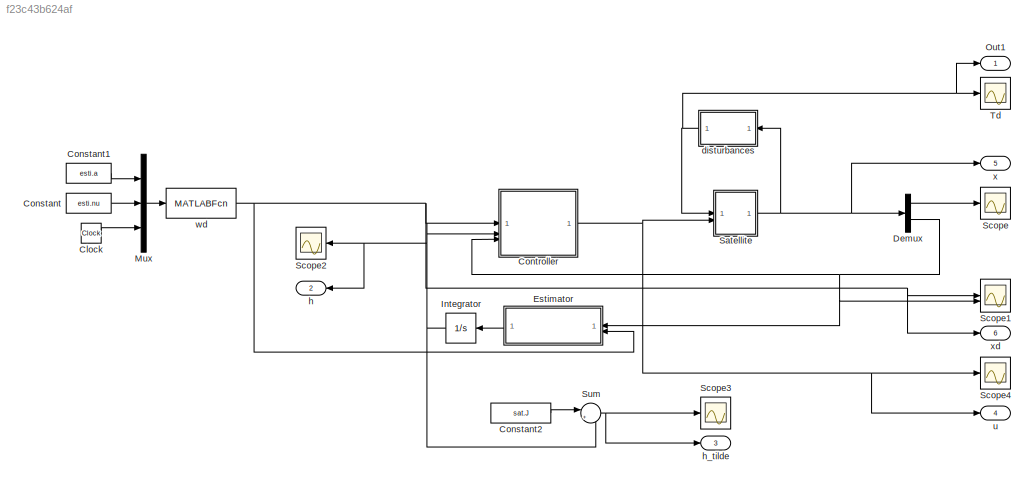
MODEL slx_f23c43b624af
KIND model
CONFIG AbsTol = auto
CONFIG EnableMultiTasking = off
CONFIG FixedStep = 0.001
CONFIG MaxStep = auto
CONFIG MinStep = auto
CONFIG RelTol = 1e-3
CONFIG SampleTimeConstraint = Unconstrained
CONFIG SolverName = VariableStepAuto
CONFIG StartTime = 0.0
CONFIG StopTime = 1000
BLOCK [Clock] Clock
BLOCK [Constant] Constant
  Value = esti.nu
BLOCK [Constant] Constant1
  Value = esti.a
BLOCK [Constant] Constant2
  Value = sat.J
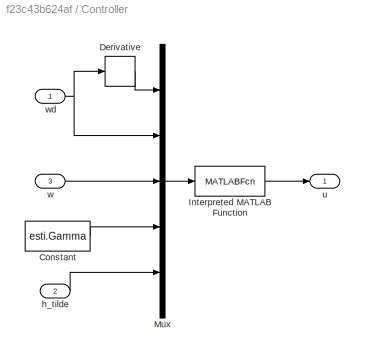
BLOCK [SubSystem] Controller
BLOCK [Constant] Controller/Constant
  Value = esti.Gamma
BLOCK [Derivative] Controller/Derivative
BLOCK [MATLABFcn] Controller/Interpreted MATLAB Function
  MATLABFcn = controller
BLOCK [Mux] Controller/Mux
  DisplayOption = bar
  Inputs = 5
BLOCK [Inport] Controller/h_tilde
  Port = 2
BLOCK [Outport] Controller/u
BLOCK [Inport] Controller/w
  Port = 3
BLOCK [Inport] Controller/wd
BLOCK [Demux] Demux
  Outputs = 2
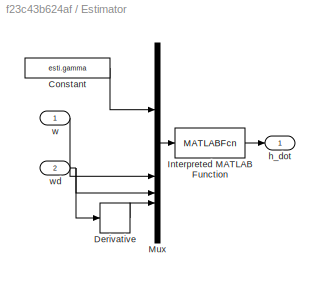
BLOCK [SubSystem] Estimator
  NameLocation = top
BLOCK [Constant] Estimator/Constant
  Value = esti.gamma
  VectorParams1D = off
BLOCK [Derivative] Estimator/Derivative
BLOCK [MATLABFcn] Estimator/Interpreted MATLAB Function
  MATLABFcn = estimator
BLOCK [Mux] Estimator/Mux
  DisplayOption = bar
BLOCK [Outport] Estimator/h_dot
BLOCK [Inport] Estimator/w
BLOCK [Inport] Estimator/wd
  Port = 2
BLOCK [Integrator] Integrator
  NameLocation = top
BLOCK [Mux] Mux
  DisplayOption = bar
  Inputs = 3
BLOCK [Outport] Out1
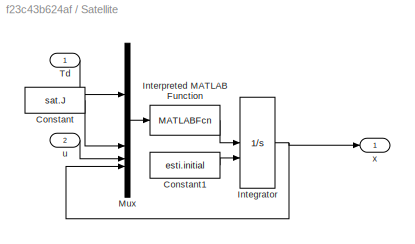
BLOCK [SubSystem] Satellite
BLOCK [Constant] Satellite/Constant
  Value = sat.J
BLOCK [Constant] Satellite/Constant1
  Value = esti.initial
BLOCK [Integrator] Satellite/Integrator
  InitialConditionSource = external
BLOCK [MATLABFcn] Satellite/Interpreted MATLAB Function
  MATLABFcn = cubeSatEquationState
BLOCK [Mux] Satellite/Mux
  DisplayOption = bar
BLOCK [Inport] Satellite/Td
BLOCK [Inport] Satellite/u
  Port = 2
BLOCK [Outport] Satellite/x
BLOCK [Scope] Scope
  Floating = off
  NumInputPorts = 1
  ScopeSpecificationString = Simulink.scopes.TimeScopeBlockCfg('CurrentConfiguration', extmgr.ConfigurationSet(extmgr.Configuration('Core','General UI',true),extmgr.Configuration('Core','Source UI',true),extmgr.Configuration('Sources','WiredSimulink',true),extmgr.Configuration('Visuals','Time Domain',true,'SerializedDisplays',{struct('MinYLimReal','-1.24894','MaxYLimReal','1.24988','YLabelReal','','MinYLimMag','0.00000','MaxY...<+1502ch>
BLOCK [Scope] Scope1
  Floating = off
  NumInputPorts = 2
  ScopeSpecificationString = Simulink.scopes.TimeScopeBlockCfg('CurrentConfiguration', extmgr.ConfigurationSet(extmgr.Configuration('Core','General UI',true),extmgr.Configuration('Core','Source UI',true),extmgr.Configuration('Sources','WiredSimulink',true,'DataLoggingVariableName','ScopeData1'),extmgr.Configuration('Visuals','Time Domain',true,'SerializedDisplays',{struct('MinYLimReal','-1.4625','MaxYLimReal','1.58876','YLabe...<+1712ch>
BLOCK [Scope] Scope2
  Floating = off
  NameLocation = top
  NumInputPorts = 1
  ScopeSpecificationString = Simulink.scopes.TimeScopeBlockCfg('CurrentConfiguration', extmgr.ConfigurationSet(extmgr.Configuration('Core','General UI',true),extmgr.Configuration('Core','Source UI',true),extmgr.Configuration('Sources','WiredSimulink',true,'DataLoggingVariableName','ScopeData2'),extmgr.Configuration('Visuals','Time Domain',true,'SerializedDisplays',{struct('MinYLimReal','-0.00254','MaxYLimReal','0.00525','YLab...<+1743ch>
BLOCK [Scope] Scope3
  Floating = off
  NumInputPorts = 1
  ScopeSpecificationString = Simulink.scopes.TimeScopeBlockCfg('CurrentConfiguration', extmgr.ConfigurationSet(extmgr.Configuration('Core','General UI',true),extmgr.Configuration('Core','Source UI',true),extmgr.Configuration('Sources','WiredSimulink',true,'DataLoggingVariableName','ScopeData3'),extmgr.Configuration('Visuals','Time Domain',true,'SerializedDisplays',{struct('MinYLimReal','-0.04197','MaxYLimReal','0.01532','YLab...<+1566ch>
BLOCK [Scope] Scope4
  Floating = off
  NumInputPorts = 1
  ScopeSpecificationString = Simulink.scopes.TimeScopeBlockCfg('CurrentConfiguration', extmgr.ConfigurationSet(extmgr.Configuration('Core','General UI',true),extmgr.Configuration('Core','Source UI',true),extmgr.Configuration('Sources','WiredSimulink',true,'DataLoggingVariableName','ScopeData4'),extmgr.Configuration('Visuals','Time Domain',true,'SerializedDisplays',{struct('MinYLimReal','-0.05407','MaxYLimReal','0.04409','YLab...<+1563ch>
BLOCK [Sum] Sum
  Inputs = |+-
BLOCK [Scope] Td
  Floating = off
  NumInputPorts = 1
  ScopeSpecificationString = Simulink.scopes.TimeScopeBlockCfg('CurrentConfiguration', extmgr.ConfigurationSet(extmgr.Configuration('Core','General UI',true),extmgr.Configuration('Core','Source UI',true),extmgr.Configuration('Sources','WiredSimulink',true,'DataLoggingVariableName','ScopeData1'),extmgr.Configuration('Visuals','Time Domain',true,'SerializedDisplays',{struct('MinYLimReal','-0.000051','MaxYLimReal','0.000048','YL...<+1552ch>
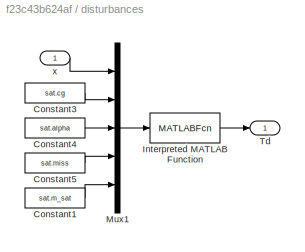
BLOCK [SubSystem] disturbances
  NameLocation = top
BLOCK [Constant] disturbances/Constant1
  Value = sat.m_sat
BLOCK [Constant] disturbances/Constant3
  Value = sat.cg
BLOCK [Constant] disturbances/Constant4
  Value = sat.alpha
BLOCK [Constant] disturbances/Constant5
  Value = sat.miss
BLOCK [MATLABFcn] disturbances/Interpreted MATLAB Function
  MATLABFcn = disturbances
BLOCK [Mux] disturbances/Mux1
  DisplayOption = bar
  Inputs = 5
BLOCK [Outport] disturbances/Td
BLOCK [Inport] disturbances/x
BLOCK [Outport] h
  NameLocation = top
  Port = 2
BLOCK [Outport] h_tilde
  Port = 3
BLOCK [Outport] u
  Port = 4
BLOCK [MATLABFcn] wd
  MATLABFcn = compute_omega_d_T
BLOCK [Outport] x
  Port = 5
BLOCK [Outport] xd
  Port = 6
LINE Clock:1 -> Mux:3
LINE Constant1:1 -> Mux:1
LINE Constant2:1 -> Sum:1
LINE Constant:1 -> Mux:2
LINE Controller/Constant:1 -> Controller/Mux:4
LINE Controller/Derivative:1 -> Controller/Mux:1
LINE Controller/Interpreted MATLAB Function:1 -> Controller/u:1
LINE Controller/Mux:1 -> Controller/Interpreted MATLAB Function:1
LINE Controller/h_tilde:1 -> Controller/Mux:5
LINE Controller/w:1 -> Controller/Mux:3
NET Controller/wd:1 -> Controller/Derivative:1, Controller/Mux:2
NET Controller:1 -> Satellite:2, Scope4:1, u:1
LINE Demux:1 -> Scope:1
NET Demux:2 -> Controller:3, Estimator:1, Scope1:2
LINE Estimator/Constant:1 -> Estimator/Mux:1
LINE Estimator/Derivative:1 -> Estimator/Mux:4
LINE Estimator/Interpreted MATLAB Function:1 -> Estimator/h_dot:1
LINE Estimator/Mux:1 -> Estimator/Interpreted MATLAB Function:1
LINE Estimator/w:1 -> Estimator/Mux:2
NET Estimator/wd:1 -> Estimator/Derivative:1, Estimator/Mux:3
LINE Estimator:1 -> Integrator:1
NET Integrator:1 -> Controller:2, Scope2:1, Sum:2, h:1
LINE Mux:1 -> wd:1
LINE Satellite/Constant1:1 -> Satellite/Integrator:2
LINE Satellite/Constant:1 -> Satellite/Mux:2
NET Satellite/Integrator:1 -> Satellite/Mux:4, Satellite/x:1
LINE Satellite/Interpreted MATLAB Function:1 -> Satellite/Integrator:1
LINE Satellite/Mux:1 -> Satellite/Interpreted MATLAB Function:1
LINE Satellite/Td:1 -> Satellite/Mux:1
LINE Satellite/u:1 -> Satellite/Mux:3
NET Satellite:1 -> Demux:1, disturbances:1, x:1
NET Sum:1 -> Scope3:1, h_tilde:1
LINE disturbances/Constant1:1 -> disturbances/Mux1:5
LINE disturbances/Constant3:1 -> disturbances/Mux1:2
LINE disturbances/Constant4:1 -> disturbances/Mux1:3
LINE disturbances/Constant5:1 -> disturbances/Mux1:4
LINE disturbances/Interpreted MATLAB Function:1 -> disturbances/Td:1
LINE disturbances/Mux1:1 -> disturbances/Interpreted MATLAB Function:1
LINE disturbances/x:1 -> disturbances/Mux1:1
NET disturbances:1 -> Out1:1, Satellite:1, Td:1
NET wd:1 -> Controller:1, Estimator:2, Scope1:1, xd:1
note: NET lines group one-source signal fan-out (src -> all destinations, sorted); 1:1 wires keep LINE
